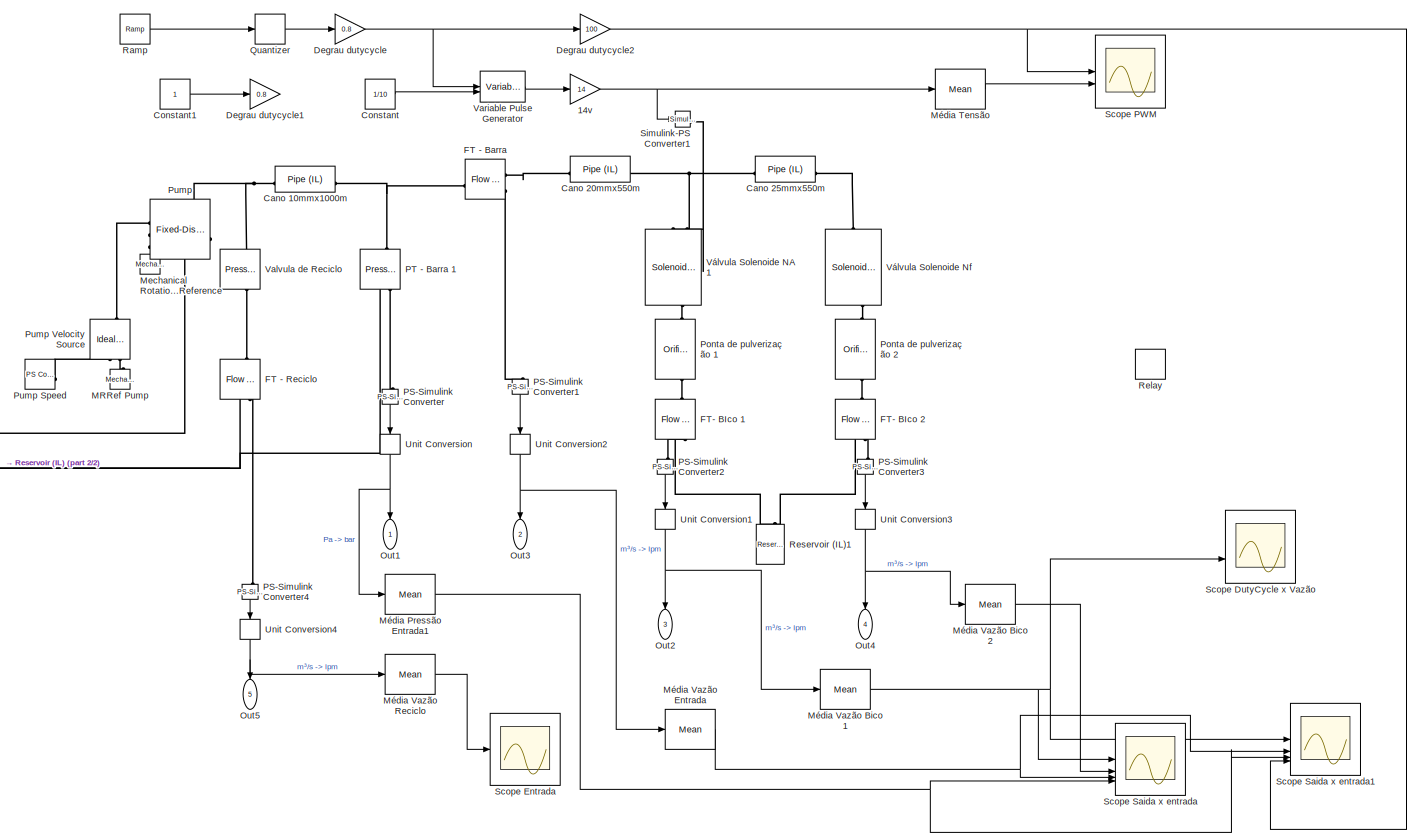
[diagram: root canvas - part 1/2, most of the canvas]
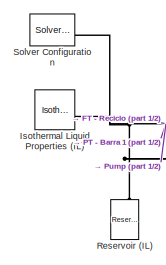
[diagram: root canvas - part 2/2, middle left region]
MODEL slx_a036547153c8
KIND model
CONFIG AbsTol = auto
CONFIG EnableMultiTasking = off
CONFIG FixedStep = auto
CONFIG MaxStep = auto
CONFIG MinStep = auto
CONFIG RelTol = 1e-3
CONFIG SampleTimeConstraint = Unconstrained
CONFIG SolverName = VariableStepAuto
CONFIG StartTime = 0.0
CONFIG StopTime = 11
BLOCK [Gain] 14v
  Gain = 14
BLOCK [Reference] Cano 10mmx1000m  REF=fl_lib/Isothermal Liquid/Elements/Pipe (IL)
  SourceBlock = fl_lib/Isothermal Liquid/Elements/Pipe (IL)
  SourceType = Pipe (IL)
BLOCK [Reference] Cano 20mmx550m  REF=fl_lib/Isothermal Liquid/Elements/Pipe (IL)
  SourceBlock = fl_lib/Isothermal Liquid/Elements/Pipe (IL)
  SourceType = Pipe (IL)
BLOCK [Reference] Cano 25mmx550m  REF=fl_lib/Isothermal Liquid/Elements/Pipe (IL)
  SourceBlock = fl_lib/Isothermal Liquid/Elements/Pipe (IL)
  SourceType = Pipe (IL)
BLOCK [Constant] Constant
  Value = 1/10
BLOCK [Constant] Constant1
BLOCK [Gain] Degrau dutycycle
  Gain = 0.8
BLOCK [Gain] Degrau dutycycle1
  Gain = 0.8
BLOCK [Gain] Degrau dutycycle2
  Gain = 100
BLOCK [Reference] FT - Barra  REF=fl_lib/Isothermal Liquid/Sensors/Flow Rate Sensor
(IL)
  SourceBlock = fl_lib/Isothermal Liquid/Sensors/Flow Rate Sensor\n(IL)
  SourceType = Flow Rate Sensor\n(IL)
BLOCK [Reference] FT - Reciclo  REF=fl_lib/Isothermal Liquid/Sensors/Flow Rate Sensor
(IL)
  NameLocation = right
  SourceBlock = fl_lib/Isothermal Liquid/Sensors/Flow Rate Sensor\n(IL)
  SourceType = Flow Rate Sensor\n(IL)
BLOCK [Reference] FT- BIco 1  REF=fl_lib/Isothermal Liquid/Sensors/Flow Rate Sensor
(IL)
  NameLocation = left
  SourceBlock = fl_lib/Isothermal Liquid/Sensors/Flow Rate Sensor\n(IL)
  SourceType = Flow Rate Sensor\n(IL)
BLOCK [Reference] FT- BIco 2  REF=fl_lib/Isothermal Liquid/Sensors/Flow Rate Sensor
(IL)
  NameLocation = left
  SourceBlock = fl_lib/Isothermal Liquid/Sensors/Flow Rate Sensor\n(IL)
  SourceType = Flow Rate Sensor\n(IL)
BLOCK [Reference] Isothermal Liquid Properties (IL)  REF=fl_lib/Isothermal Liquid/Utilities/Isothermal Liquid
Properties (IL)
  SourceBlock = fl_lib/Isothermal Liquid/Utilities/Isothermal Liquid\nProperties (IL)
  SourceType = Isothermal Liquid\nProperties (IL)
BLOCK [Reference] MRRef Pump  REF=fl_lib/Mechanical/Rotational Elements/Mechanical
Rotational Reference
  NameLocation = right
  SourceBlock = fl_lib/Mechanical/Rotational Elements/Mechanical\nRotational Reference
  SourceType = Mechanical\nRotational Reference
  Tag = Factory Generic
BLOCK [Reference] Mechanical Rotational Reference  REF=fl_lib/Mechanical/Rotational Elements/Mechanical
Rotational Reference
  NameLocation = right
  SourceBlock = fl_lib/Mechanical/Rotational Elements/Mechanical\nRotational Reference
  SourceType = Mechanical\nRotational Reference
BLOCK [Reference] Média Pressão Entrada1  REF=spsMeanLib/Mean
  LibrarySourceBlock = sps_lib/Sensors and Measurements/Mean
  SourceBlock = spsMeanLib/Mean
  SourceType = Mean
BLOCK [Reference] Média Tensão  REF=spsMeanLib/Mean
  LibrarySourceBlock = sps_lib/Sensors and Measurements/Mean
  SourceBlock = spsMeanLib/Mean
  SourceType = Mean
BLOCK [Reference] Média Vazão Bico 1  REF=spsMeanLib/Mean
  LibrarySourceBlock = sps_lib/Sensors and Measurements/Mean
  SourceBlock = spsMeanLib/Mean
  SourceType = Mean
BLOCK [Reference] Média Vazão Bico 2  REF=spsMeanLib/Mean
  LibrarySourceBlock = sps_lib/Sensors and Measurements/Mean
  SourceBlock = spsMeanLib/Mean
  SourceType = Mean
BLOCK [Reference] Média Vazão Entrada  REF=spsMeanLib/Mean
  LibrarySourceBlock = sps_lib/Sensors and Measurements/Mean
  SourceBlock = spsMeanLib/Mean
  SourceType = Mean
BLOCK [Reference] Média Vazão Reciclo  REF=spsMeanLib/Mean
  LibrarySourceBlock = sps_lib/Sensors and Measurements/Mean
  SourceBlock = spsMeanLib/Mean
  SourceType = Mean
BLOCK [Outport] Out1
  NameLocation = left
  SignalName = Pressao 1
  Unit = bar
BLOCK [Outport] Out2
  NameLocation = left
  Port = 3
  SignalName = vazao 2 (bico1)
  Unit = l/min
BLOCK [Outport] Out3
  NameLocation = left
  Port = 2
  SignalName = vazao 1 (Entrada)
  Unit = l/min
BLOCK [Outport] Out4
  NameLocation = left
  Port = 4
  SignalName = vazao 3(bico 2)
  Unit = l/min
BLOCK [Outport] Out5
  NameLocation = left
  Port = 5
  SignalName = vazao reciclo
  Unit = lpm
BLOCK [Reference] PS-Simulink Converter  REF=nesl_utility/PS-Simulink
Converter
  NameLocation = left
  SourceBlock = nesl_utility/PS-Simulink\nConverter
  SourceType = PS-Simulink\nConverter
BLOCK [Reference] PS-Simulink Converter1  REF=nesl_utility/PS-Simulink
Converter
  NameLocation = left
  SourceBlock = nesl_utility/PS-Simulink\nConverter
  SourceType = PS-Simulink\nConverter
BLOCK [Reference] PS-Simulink Converter2  REF=nesl_utility/PS-Simulink
Converter
  NameLocation = left
  SourceBlock = nesl_utility/PS-Simulink\nConverter
  SourceType = PS-Simulink\nConverter
BLOCK [Reference] PS-Simulink Converter3  REF=nesl_utility/PS-Simulink
Converter
  NameLocation = right
  SourceBlock = nesl_utility/PS-Simulink\nConverter
  SourceType = PS-Simulink\nConverter
BLOCK [Reference] PS-Simulink Converter4  REF=nesl_utility/PS-Simulink
Converter
  NameLocation = left
  SourceBlock = nesl_utility/PS-Simulink\nConverter
  SourceType = PS-Simulink\nConverter
BLOCK [Reference] PT - Barra 1  REF=fl_lib/Isothermal Liquid/Sensors/Pressure Sensor (IL)
  NameLocation = right
  SourceBlock = fl_lib/Isothermal Liquid/Sensors/Pressure Sensor (IL)
  SourceType = Pressure Sensor (IL)
BLOCK [Reference] Ponta de pulverização 1  REF=SimscapeFluids_lib/Isothermal Liquid/Valves & Orifices/Orifices/Orifice (IL)
  NameLocation = left
  SourceBlock = SimscapeFluids_lib/Isothermal Liquid/Valves & Orifices/Orifices/Orifice (IL)
  SourceType = Orifice (IL)
BLOCK [Reference] Ponta de pulverização 2  REF=SimscapeFluids_lib/Isothermal Liquid/Valves & Orifices/Orifices/Orifice (IL)
  NameLocation = left
  SourceBlock = SimscapeFluids_lib/Isothermal Liquid/Valves & Orifices/Orifices/Orifice (IL)
  SourceType = Orifice (IL)
BLOCK [Reference] Pump  REF=SimscapeFluids_lib/Isothermal Liquid/Pumps & Motors/Fixed-Displacement
Pump (IL)
  NameLocation = left
  SourceBlock = SimscapeFluids_lib/Isothermal Liquid/Pumps & Motors/Fixed-Displacement\nPump (IL)
  SourceType = Fixed-Displacement\nPump (IL)
  Tag = Factory Generic
BLOCK [Reference] Pump Speed  REF=fl_lib/Physical Signals/Sources/PS Constant
  SourceBlock = fl_lib/Physical Signals/Sources/PS Constant
  SourceType = PS Constant
BLOCK [Reference] Pump Velocity Source  REF=fl_lib/Mechanical/Mechanical Sources/Ideal Angular
Velocity Source
  NameLocation = left
  SourceBlock = fl_lib/Mechanical/Mechanical Sources/Ideal Angular\nVelocity Source
  SourceType = Ideal Angular\nVelocity Source
  Tag = Factory Generic
BLOCK [Quantizer] Quantizer
  QuantizationInterval = 0.1
BLOCK [Reference] Ramp  REF=simulink/Sources/Ramp
  SourceBlock = simulink/Sources/Ramp
  SourceType = Ramp
BLOCK [Relay] Relay
BLOCK [Reference] Reservoir (IL)  REF=fl_lib/Isothermal Liquid/Elements/Reservoir (IL)
  NameLocation = right
  SourceBlock = fl_lib/Isothermal Liquid/Elements/Reservoir (IL)
  SourceType = Reservoir (IL)
BLOCK [Reference] Reservoir (IL)1  REF=fl_lib/Isothermal Liquid/Elements/Reservoir (IL)
  NameLocation = right
  SourceBlock = fl_lib/Isothermal Liquid/Elements/Reservoir (IL)
  SourceType = Reservoir (IL)
BLOCK [Scope] Scope DutyCycle x Vazão
  Floating = off
  NumInputPorts = 2
  ScopeSpecificationString = Simulink.scopes.TimeScopeBlockCfg('CurrentConfiguration', extmgr.ConfigurationSet(extmgr.Configuration('Core','General UI',true,'FigureColor',[0.8 0.8 0.8]),extmgr.Configuration('Core','Source UI',true),extmgr.Configuration('Sources','WiredSimulink',true,'DataLoggingVariableName','ScopeData1'),extmgr.Configuration('Visuals','Time Domain',true,'SerializedDisplays',{struct('MinYLimReal','-0.3','MaxY...<+2106ch>
BLOCK [Scope] Scope Entrada
  Floating = off
  NumInputPorts = 1
  ScopeSpecificationString = Simulink.scopes.TimeScopeBlockCfg('CurrentConfiguration', extmgr.ConfigurationSet(extmgr.Configuration('Core','General UI',true,'FigureColor',[0.8 0.8 0.8]),extmgr.Configuration('Core','Source UI',true),extmgr.Configuration('Sources','WiredSimulink',true,'DataLoggingVariableName','ScopeData1'),extmgr.Configuration('Visuals','Time Domain',true,'SerializedDisplays',{struct('MinYLimReal','-1','MaxYLi...<+1883ch>
BLOCK [Scope] Scope PWM
  Floating = off
  NumInputPorts = 2
  ScopeSpecificationString = Simulink.scopes.TimeScopeBlockCfg('CurrentConfiguration', extmgr.ConfigurationSet(extmgr.Configuration('Core','General UI',true,'FigureColor',[0.8 0.8 0.8]),extmgr.Configuration('Core','Source UI',true),extmgr.Configuration('Sources','WiredSimulink',true,'DataLoggingVariableName','ScopeData2'),extmgr.Configuration('Visuals','Time Domain',true,'SerializedDisplays',{struct('MinYLimReal','-11.00000',...<+3270ch>
BLOCK [Scope] Scope Saida x entrada
  Floating = off
  NumInputPorts = 4
  ScopeSpecificationString = Simulink.scopes.TimeScopeBlockCfg('CurrentConfiguration', extmgr.ConfigurationSet(extmgr.Configuration('Core','General UI',true,'FigureColor',[0.8 0.8 0.8]),extmgr.Configuration('Core','Source UI',true),extmgr.Configuration('Sources','WiredSimulink',true,'DataLoggingVariableName','ScopeData1'),extmgr.Configuration('Visuals','Time Domain',true,'SerializedDisplays',{struct('MinYLimReal','-0.06151','...<+4537ch>
BLOCK [Scope] Scope Saida x entrada1
  Floating = off
  NumInputPorts = 4
  ScopeSpecificationString = Simulink.scopes.TimeScopeBlockCfg('CurrentConfiguration', extmgr.ConfigurationSet(extmgr.Configuration('Core','General UI',true,'FigureColor',[0.8 0.8 0.8]),extmgr.Configuration('Core','Source UI',true),extmgr.Configuration('Sources','WiredSimulink',true,'DataLoggingVariableName','ScopeData1'),extmgr.Configuration('Visuals','Time Domain',true,'SerializedDisplays',{struct('MinYLimReal','-0.00231','...<+4720ch>
BLOCK [Reference] Simulink-PS Converter1  REF=nesl_utility/Simulink-PS
Converter
  SourceBlock = nesl_utility/Simulink-PS\nConverter
  SourceType = Simulink-PS\nConverter
BLOCK [Reference] Solver Configuration  REF=nesl_utility/Solver
Configuration
  SourceBlock = nesl_utility/Solver\nConfiguration
  SourceType = Solver\nConfiguration
BLOCK [UnitConversion] Unit Conversion
  NameLocation = left
BLOCK [UnitConversion] Unit Conversion1
  NameLocation = left
BLOCK [UnitConversion] Unit Conversion2
  NameLocation = left
BLOCK [UnitConversion] Unit Conversion3
  NameLocation = left
BLOCK [UnitConversion] Unit Conversion4
  NameLocation = left
BLOCK [Reference] Valvula de Reciclo  REF=SimscapeFluids_lib/Isothermal Liquid/Valves & Orifices/Pressure Control
Valves/Pressure Relief
Valve (IL)
  NameLocation = right
  SourceBlock = SimscapeFluids_lib/Isothermal Liquid/Valves & Orifices/Pressure Control\nValves/Pressure Relief\nValve (IL)
  SourceType = Pressure Relief\nValve (IL)
BLOCK [VariablePulseGenerator] Variable Pulse Generator
  AllowZeroPulseWidth = on
  SampleTime = 0.1
BLOCK [Reference] Válvula Solenoide NA 1  REF=SimscapeFluids_lib/Isothermal Liquid/Valves & Orifices/Directional Control
Valves/Solenoid Valve (IL)
  NameLocation = left
  SourceBlock = SimscapeFluids_lib/Isothermal Liquid/Valves & Orifices/Directional Control\nValves/Solenoid Valve (IL)
  SourceType = Solenoid Valve (IL)
BLOCK [Reference] Válvula Solenoide Nf  REF=SimscapeFluids_lib/Isothermal Liquid/Valves & Orifices/Directional Control
Valves/Solenoid Valve (IL)
  NameLocation = left
  SourceBlock = SimscapeFluids_lib/Isothermal Liquid/Valves & Orifices/Directional Control\nValves/Solenoid Valve (IL)
  SourceType = Solenoid Valve (IL)
NET 14v:1 -> Média Tensão:1, Simulink-PS Converter1:1
LINE Constant1:1 -> Degrau dutycycle1:1
LINE Constant:1 -> Variable Pulse Generator:2
NET Degrau dutycycle2:1 -> Scope PWM:1, Scope Saida x entrada1:4
NET Degrau dutycycle:1 -> Degrau dutycycle2:1, Variable Pulse Generator:1
NET Média Pressão Entrada1:1 -> Scope Saida x entrada1:3, Scope Saida x entrada:4
LINE Média Tensão:1 -> Scope PWM:2
NET Média Vazão Bico 1:1 -> Scope DutyCycle x Vazão:2, Scope Saida x entrada1:1, Scope Saida x entrada:1
LINE Média Vazão Bico 2:1 -> Scope Saida x entrada:2
NET Média Vazão Entrada:1 -> Scope Saida x entrada1:2, Scope Saida x entrada:3
LINE Média Vazão Reciclo:1 -> Scope Entrada:1
LINE PS-Simulink Converter1:1 -> Unit Conversion2:1
LINE PS-Simulink Converter2:1 -> Unit Conversion1:1
LINE PS-Simulink Converter3:1 -> Unit Conversion3:1
LINE PS-Simulink Converter4:1 -> Unit Conversion4:1
LINE PS-Simulink Converter:1 -> Unit Conversion:1
LINE Quantizer:1 -> Degrau dutycycle:1
LINE Ramp:1 -> Quantizer:1
NET Unit Conversion1:1 -> Média Vazão Bico 1:1, Out2:1
NET Unit Conversion2:1 -> Média Vazão Entrada:1, Out3:1
NET Unit Conversion3:1 -> Média Vazão Bico 2:1, Out4:1
NET Unit Conversion4:1 -> Média Vazão Reciclo:1, Out5:1
NET Unit Conversion:1 -> Média Pressão Entrada1:1, Out1:1
LINE Variable Pulse Generator:1 -> 14v:1
PNET net1: Cano 10mmx1000m:LConn1 -- Pump:LConn1 -- Valvula de Reciclo:LConn1
PNET net2: Cano 10mmx1000m:RConn1 -- FT - Barra:LConn1 -- PT - Barra 1:LConn1
PLINE Cano 20mmx550m:LConn1 -- FT - Barra:RConn1
PNET net3: Cano 20mmx550m:RConn1 -- Cano 25mmx550m:LConn1 -- Válvula Solenoide NA 1:LConn1
PLINE Cano 25mmx550m:RConn1 -- Válvula Solenoide Nf:LConn1
PLINE FT - Barra:RConn3 -- PS-Simulink Converter1:LConn1
PLINE FT - Reciclo:LConn1 -- Valvula de Reciclo:RConn1
PNET net4: FT - Reciclo:RConn1 -- Isothermal Liquid Properties (IL):RConn1 -- PT - Barra 1:RConn1 -- Pump:RConn3 -- Reservoir (IL):LConn1 -- Solver Configuration:RConn1
PLINE FT - Reciclo:RConn2 -- PS-Simulink Converter4:LConn1
PLINE FT- BIco 1:LConn1 -- Ponta de pulverização 1:RConn1
PNET net5: FT- BIco 1:RConn1 -- FT- BIco 2:RConn1 -- Reservoir (IL)1:LConn1
PLINE FT- BIco 1:RConn2 -- PS-Simulink Converter2:LConn1
PLINE FT- BIco 2:LConn1 -- Ponta de pulverização 2:RConn1
PLINE FT- BIco 2:RConn2 -- PS-Simulink Converter3:LConn1
PLINE MRRef Pump:LConn1 -- Pump Velocity Source:RConn2
PLINE Mechanical Rotational Reference:LConn1 -- Pump:RConn2
PLINE PS-Simulink Converter:LConn1 -- PT - Barra 1:RConn2
PLINE Ponta de pulverização 1:LConn1 -- Válvula Solenoide NA 1:RConn1
PLINE Ponta de pulverização 2:LConn1 -- Válvula Solenoide Nf:RConn1
PLINE Pump Speed:RConn1 -- Pump Velocity Source:RConn1
PLINE Pump Velocity Source:LConn1 -- Pump:RConn1
PLINE Simulink-PS Converter1:RConn1 -- Válvula Solenoide NA 1:LConn2
note: NET lines group one-source signal fan-out (src -> all destinations, sorted); 1:1 wires keep LINE; PNET lines group multi-terminal physical nets as a canonical sorted terminal list (undirected conserving connections); 2-terminal nets keep the pairwise PLINE form
